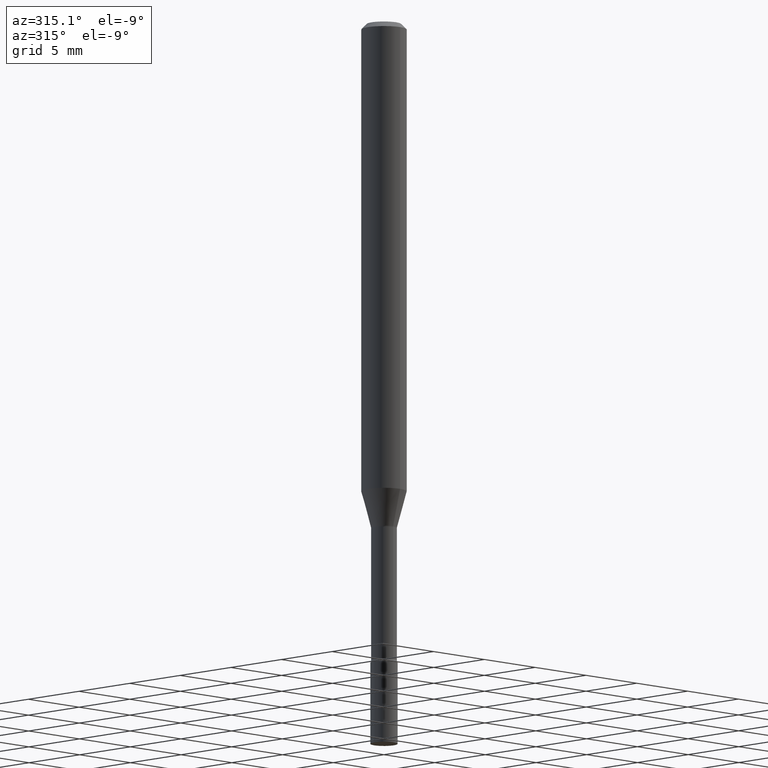
[diagram: clean part render]
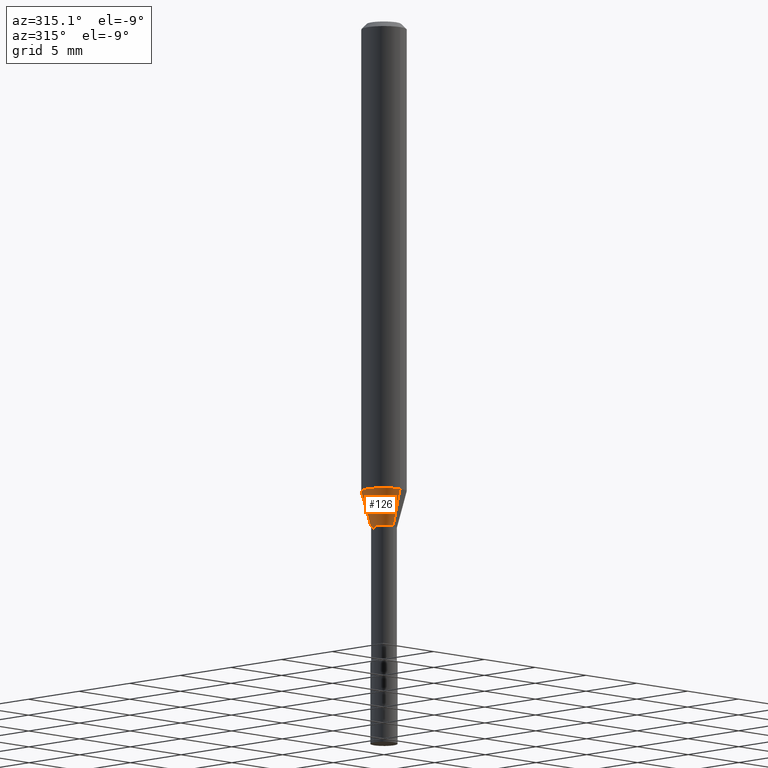
[diagram: same view with one face highlighted and labeled with its STEP entity id]
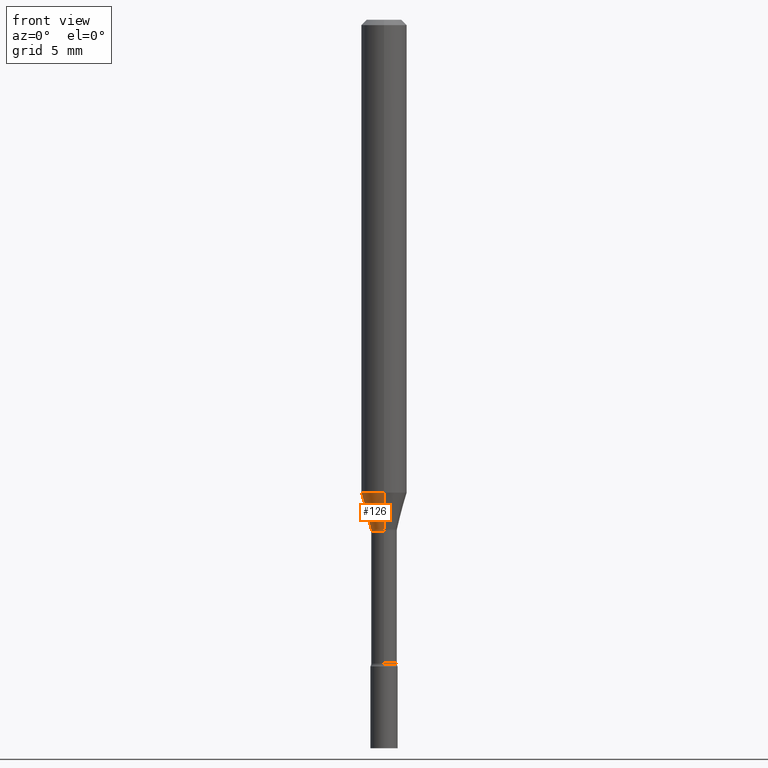
[diagram: same view with one face highlighted and labeled with its STEP entity id]
A machine part, auxiliary view. The second image highlights one B-rep face of the part: STEP entity #126.
A second angle (front view) of the same face is appended — the face is thin or edge-on in the first view.
In plain terms, the highlighted conical surface has half-angle 15 deg.
Its self-contained STEP definition (entity closure, byte-faithful):
#9 = VERTEX_POINT ( 'NONE', #94 ) ;
#13 = EDGE_CURVE ( 'NONE', #376, #9, #486, .T. ) ;
#24 = CIRCLE ( 'NONE', #111, 0.03576111260566398192 ) ;
#34 = ORIENTED_EDGE ( 'NONE', *, *, #185, .F. ) ;
#39 = VECTOR ( 'NONE', #410, 39.37007874015748143 ) ;
#40 = DIRECTION ( 'NONE',  ( -2.445457175457371238E-29, 3.491497994707285669E-15, 1.000000000000000000 ) ) ;
#73 = EDGE_CURVE ( 'NONE', #340, #376, #24, .T. ) ;
#94 = CARTESIAN_POINT ( 'NONE',  ( -4.364351673553601150E-16, -0.06250000000000456579, -1.298301615493748118 ) ) ;
#104 = DIRECTION ( 'NONE',  ( -6.982962677686266711E-15, -1.000000000000000000, 0.000000000000000000 ) ) ;
#111 = AXIS2_PLACEMENT_3D ( 'NONE', #461, #273, #313 ) ;
#116 = LINE ( 'NONE', #160, #318 ) ;
#126 = ADVANCED_FACE ( 'NONE', ( #511 ), #225, .T. ) ;
#135 = ORIENTED_EDGE ( 'NONE', *, *, #73, .T. ) ;
#151 = DIRECTION ( 'NONE',  ( -6.982962677686265922E-15, -1.000000000000000000, 4.370956789862821150E-15 ) ) ;
#156 = VERTEX_POINT ( 'NONE', #343 ) ;
#160 = CARTESIAN_POINT ( 'NONE',  ( 2.540979878465690730E-16, 0.03576111260565909694, -1.398092501787273179 ) ) ;
#161 = EDGE_CURVE ( 'NONE', #156, #9, #261, .T. ) ;
#163 = CARTESIAN_POINT ( 'NONE',  ( -2.497185146378532502E-16, -0.03576111260566886690, -1.398092501787273179 ) ) ;
#185 = EDGE_CURVE ( 'NONE', #340, #156, #116, .T. ) ;
#225 = CONICAL_SURFACE ( 'NONE', #359, 0.03576111260566398192, 0.2617993877991499074 ) ;
#228 = CARTESIAN_POINT ( 'NONE',  ( 3.418975340448834003E-29, -4.881437166405555693E-15, -1.398092501787273179 ) ) ;
#255 = CARTESIAN_POINT ( 'NONE',  ( -2.497185146378532502E-16, -0.03576111260566886690, -1.398092501787273179 ) ) ;
#261 = CIRCLE ( 'NONE', #437, 0.06250000000000000000 ) ;
#273 = DIRECTION ( 'NONE',  ( -2.445457175457371238E-29, 3.491497994707285669E-15, 1.000000000000000000 ) ) ;
#304 = DIRECTION ( 'NONE',  ( -2.445457175457371238E-29, 3.491497994707285669E-15, 1.000000000000000000 ) ) ;
#313 = DIRECTION ( 'NONE',  ( -6.982962677686266711E-15, -1.000000000000000000, 0.000000000000000000 ) ) ;
#318 = VECTOR ( 'NONE', #431, 39.37007874015748854 ) ;
#334 = EDGE_LOOP ( 'NONE', ( #34, #135, #497, #478 ) ) ;
#340 = VERTEX_POINT ( 'NONE', #451 ) ;
#343 = CARTESIAN_POINT ( 'NONE',  ( 4.440892098500940720E-16, 0.06249999999999543421, -1.298301615493748562 ) ) ;
#359 = AXIS2_PLACEMENT_3D ( 'NONE', #228, #304, #104 ) ;
#360 = CARTESIAN_POINT ( 'NONE',  ( 3.174941001517083713E-29, -4.533017487021651812E-15, -1.298301615493748340 ) ) ;
#376 = VERTEX_POINT ( 'NONE', #163 ) ;
#410 = DIRECTION ( 'NONE',  ( -1.807323732225327773E-15, -0.2588190451025178529, 0.9659258262890690894 ) ) ;
#431 = DIRECTION ( 'NONE',  ( 1.839019923739597554E-15, 0.2588190451025245697, 0.9659258262890670910 ) ) ;
#437 = AXIS2_PLACEMENT_3D ( 'NONE', #360, #40, #151 ) ;
#451 = CARTESIAN_POINT ( 'NONE',  ( 3.490935988483317697E-16, 0.03576111260565909694, -1.398092501787273179 ) ) ;
#461 = CARTESIAN_POINT ( 'NONE',  ( 3.418975340448834003E-29, -4.881437166405555693E-15, -1.398092501787273179 ) ) ;
#478 = ORIENTED_EDGE ( 'NONE', *, *, #161, .F. ) ;
#486 = LINE ( 'NONE', #255, #39 ) ;
#497 = ORIENTED_EDGE ( 'NONE', *, *, #13, .T. ) ;
#511 = FACE_OUTER_BOUND ( 'NONE', #334, .T. ) ;